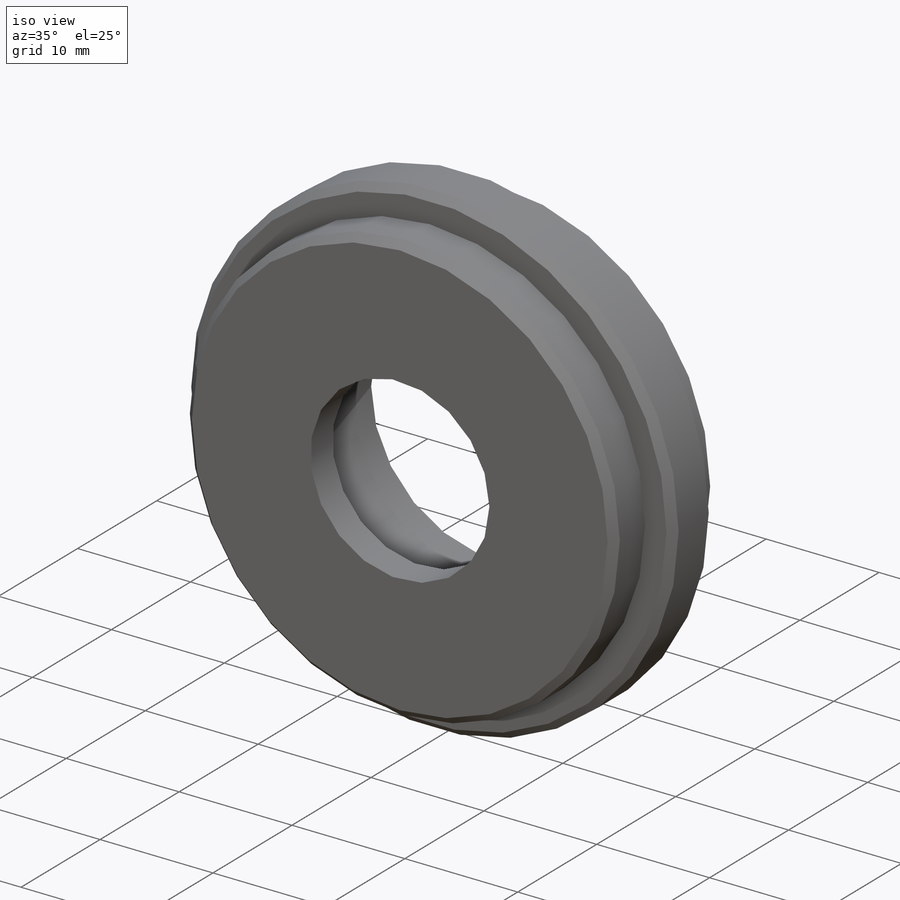
[diagram: iso view]
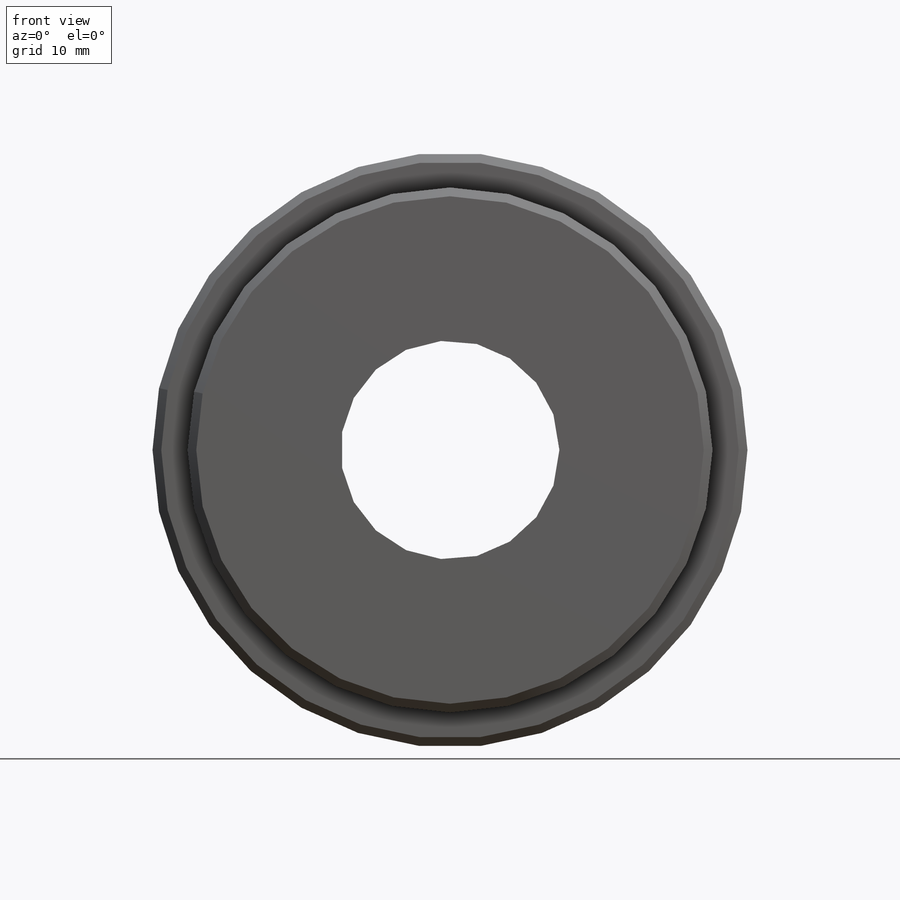
[diagram: front view]
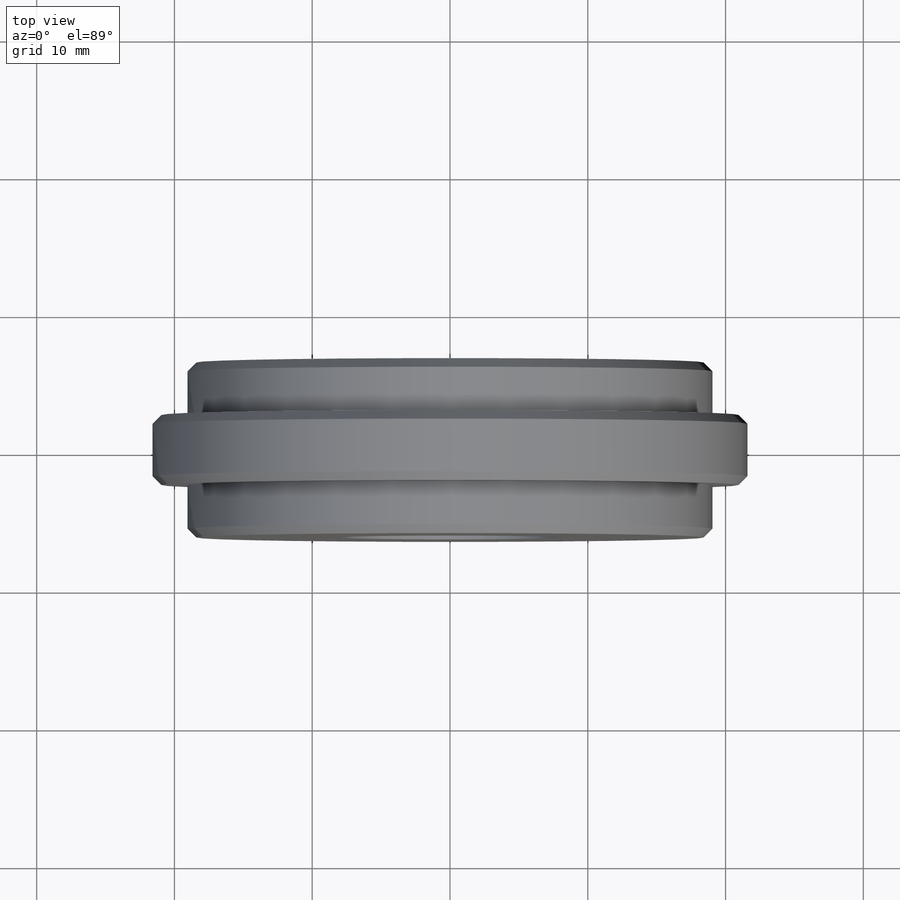
[diagram: top view]
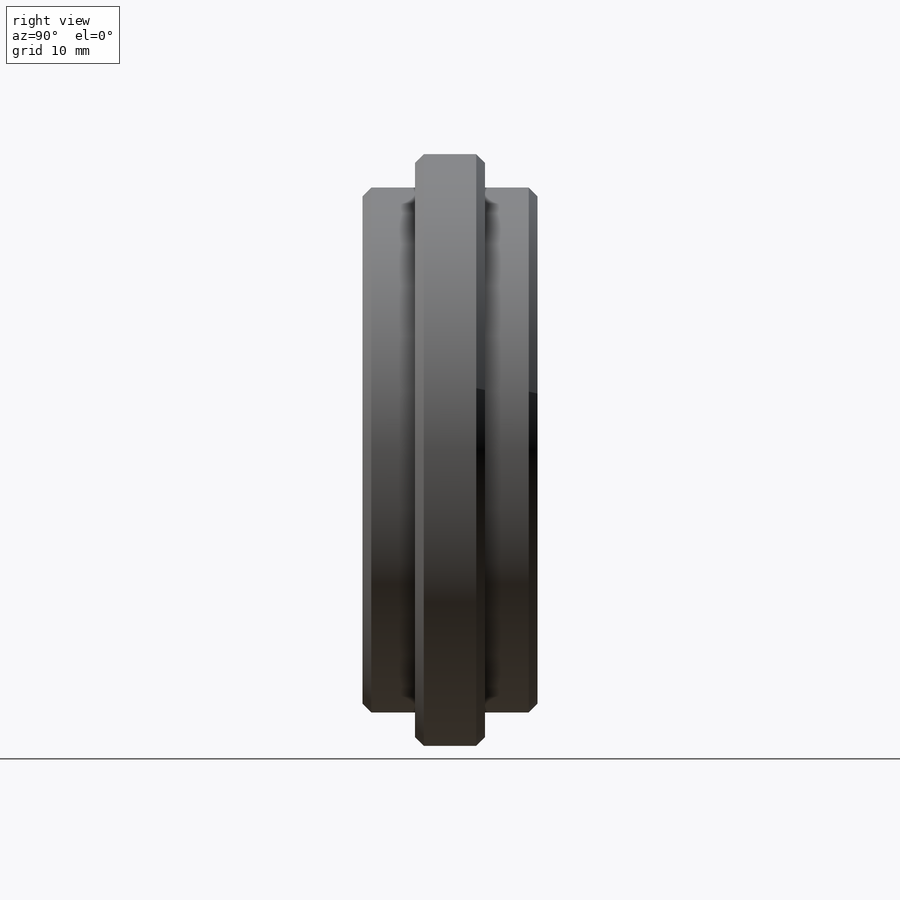
[diagram: right view]
SOLIDWORKS PART (.sldprt)
format: sldprt  version: not decoded by parser v0  size: 200,704 bytes
history: native  units: mm
features: sketch x3, extrude x3, chamfer x2, material x1 (+11 scaffold rows collapsed)
feature tree (20):
  scaffold x11  (default folders/planes/origin — collapsed)
  material  "Material <not specified>"
  sketch  "Sketch1"  dims[D1=38.1mm D2=21.9746mm]
  extrude  "Boss-Extrude1"  Depth=12.7mm
  sketch  "Sketch2"  dims[D1=2.54mm]
  extrude  "Boss-Extrude2"  Depth=5.08mm
  sketch  "Sketch3"  dims[D1=15.875mm]
  extrude  "Boss-Extrude3"  Depth=2.794mm
  chamfer  "Chamfer1"  Distance=0.635mm Angle=45deg
  chamfer  "Chamfer2"  Distance=0.635mm Angle=45deg
decode coverage: 8 of 8 modeling features carry decoded parameters
note: suppression state not decoded; provenance and decode notes live in map.json
